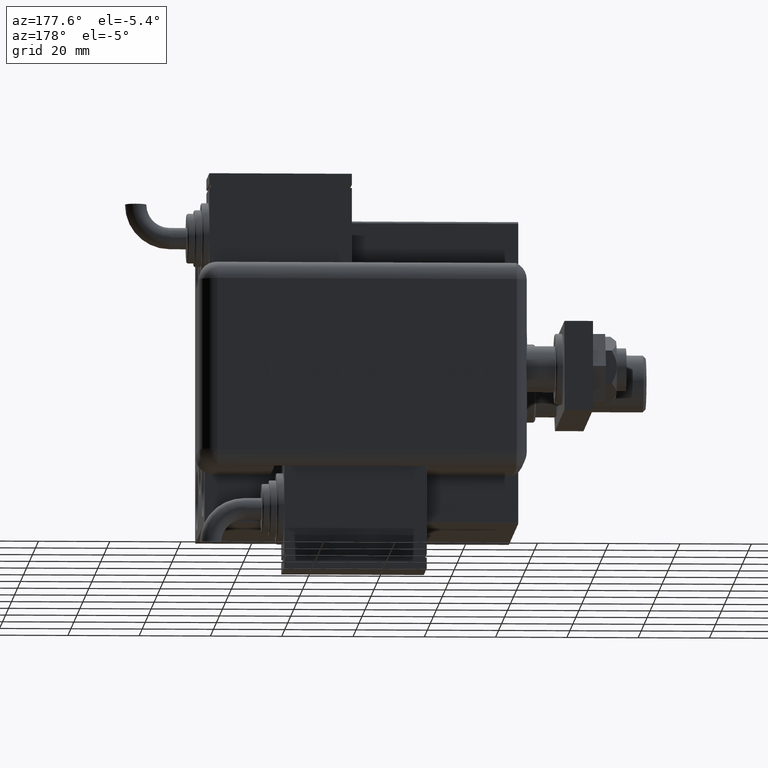
[diagram: clean part render]
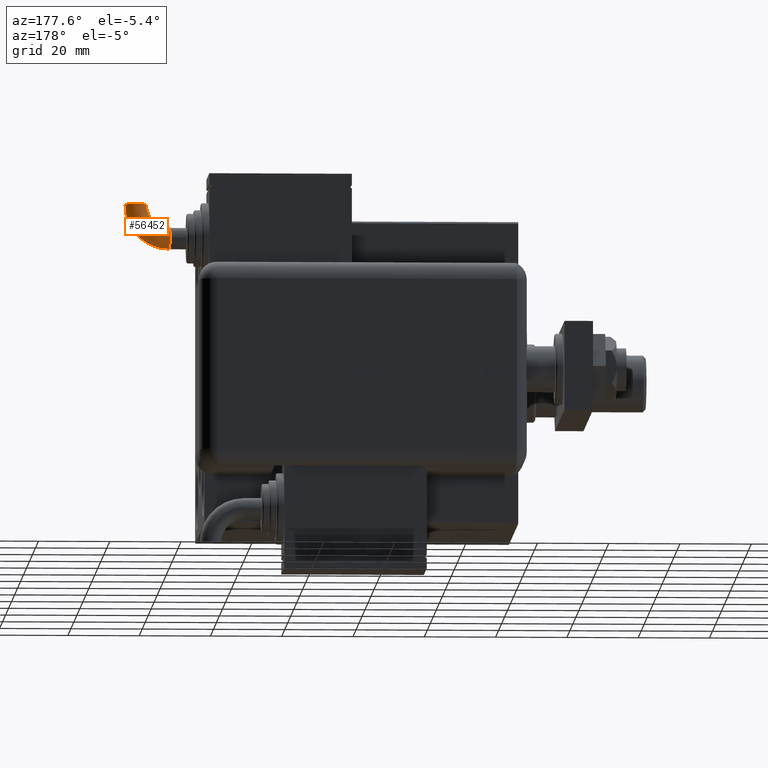
[diagram: same view with one face highlighted and labeled with its STEP entity id]
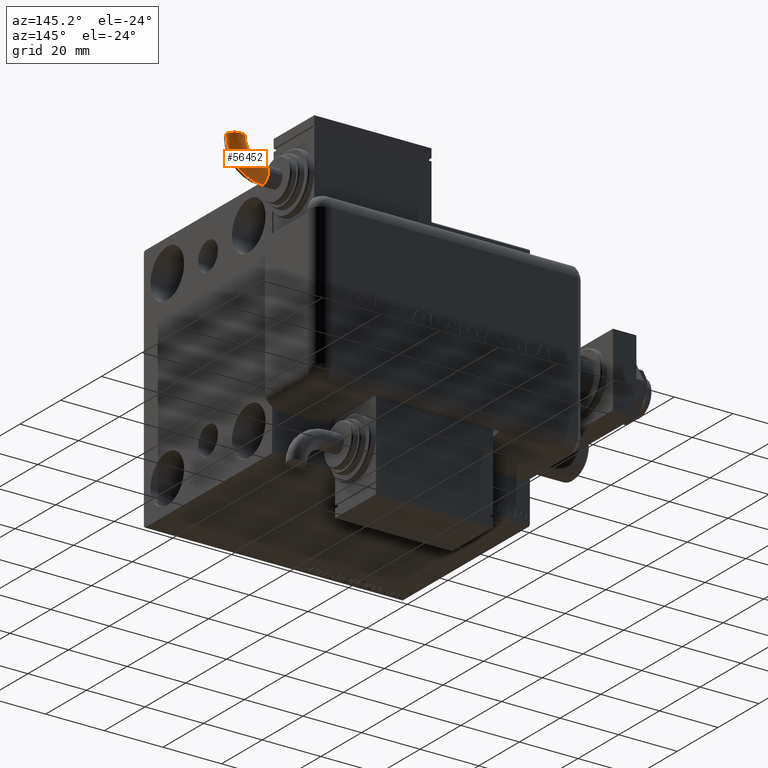
[diagram: same view with one face highlighted and labeled with its STEP entity id]
A machine part, auxiliary view. The second image highlights one B-rep face of the part: STEP entity #56452.
A second angle (auxiliary view) of the same face is appended — the face is thin or edge-on in the first view.
In plain terms, the highlighted toroidal blend (fillet) surface has major radius 9.5072 mm and minor (blend) radius 3 mm.
Its self-contained STEP definition (entity closure, byte-faithful):
#370 = AXIS2_PLACEMENT_3D ( 'NONE', #41209, #40312, #50317 ) ;
#1590 = DIRECTION ( 'NONE',  ( 1.000000000000000000, 1.025520576932673761E-15, 0.000000000000000000 ) ) ;
#3726 = AXIS2_PLACEMENT_3D ( 'NONE', #24999, #6539, #34107 ) ;
#4070 = CARTESIAN_POINT ( 'NONE',  ( -30.75201677704342274, 2.118407575146589373E-14, -2.999999999999997335 ) ) ;
#4493 = EDGE_LOOP ( 'NONE', ( #10766, #22055, #28416, #43967, #8792 ) ) ;
#4503 = EDGE_CURVE ( 'NONE', #41441, #53791, #4696, .T. ) ;
#4696 = CIRCLE ( 'NONE', #3726, 6.507211519273966793 ) ;
#6539 = DIRECTION ( 'NONE',  ( 0.000000000000000000, 0.000000000000000000, 1.000000000000000000 ) ) ;
#8792 = ORIENTED_EDGE ( 'NONE', *, *, #56777, .T. ) ;
#10766 = ORIENTED_EDGE ( 'NONE', *, *, #14748, .F. ) ;
#11286 = DIRECTION ( 'NONE',  ( -1.156482317317872908E-15, 1.000000000000000000, 0.000000000000000000 ) ) ;
#14748 = EDGE_CURVE ( 'NONE', #15075, #18276, #41704, .T. ) ;
#15075 = VERTEX_POINT ( 'NONE', #48217 ) ;
#16930 = TOROIDAL_SURFACE ( 'NONE', #45035, 9.507211519273964129, 2.999999999999996891 ) ;
#18276 = VERTEX_POINT ( 'NONE', #42639 ) ;
#19713 = DIRECTION ( 'NONE',  ( 0.000000000000000000, 0.000000000000000000, 1.000000000000000000 ) ) ;
#22055 = ORIENTED_EDGE ( 'NONE', *, *, #52789, .F. ) ;
#22323 = CARTESIAN_POINT ( 'NONE',  ( -30.75201677704342274, -9.507211519273942812, 0.000000000000000000 ) ) ;
#23572 = CARTESIAN_POINT ( 'NONE',  ( -30.75201677704341918, -2.999999999999976463, -3.673940397442056910E-16 ) ) ;
#24848 = FACE_OUTER_BOUND ( 'NONE', #4493, .T. ) ;
#24999 = CARTESIAN_POINT ( 'NONE',  ( -30.75201677704342274, -9.507211519273942812, -3.673940397442055924E-16 ) ) ;
#26264 = DIRECTION ( 'NONE',  ( -7.402363701065945741E-06, 0.9999999999726024713, 0.000000000000000000 ) ) ;
#26607 = CIRCLE ( 'NONE', #50834, 2.999999999999996891 ) ;
#28416 = ORIENTED_EDGE ( 'NONE', *, *, #46739, .F. ) ;
#28884 = CARTESIAN_POINT ( 'NONE',  ( -37.25922829613910636, -9.507259688020280208, -3.673940397551225891E-16 ) ) ;
#29478 = CARTESIAN_POINT ( 'NONE',  ( -30.75201677704342274, 2.081668171172168513E-14, 0.000000000000000000 ) ) ;
#33220 = CIRCLE ( 'NONE', #46764, 2.999999999999996003 ) ;
#34107 = DIRECTION ( 'NONE',  ( 1.000000000000000000, 0.000000000000000000, 0.000000000000000000 ) ) ;
#40312 = DIRECTION ( 'NONE',  ( 1.000000000000000000, 1.025520576932673761E-15, 0.000000000000000000 ) ) ;
#40809 = CARTESIAN_POINT ( 'NONE',  ( -40.25922829605691078, -9.507281895111381331, 0.000000000000000000 ) ) ;
#41209 = CARTESIAN_POINT ( 'NONE',  ( -30.75201677704342274, 2.081668171172168513E-14, 0.000000000000000000 ) ) ;
#41441 = VERTEX_POINT ( 'NONE', #23572 ) ;
#41704 = CIRCLE ( 'NONE', #42710, 12.50721151927396058 ) ;
#42639 = CARTESIAN_POINT ( 'NONE',  ( -43.25922829597471519, -9.507304102202486007, 0.000000000000000000 ) ) ;
#42710 = AXIS2_PLACEMENT_3D ( 'NONE', #22323, #45372, #54488 ) ;
#42753 = CARTESIAN_POINT ( 'NONE',  ( -30.75201677704342274, -9.507211519273942812, 0.000000000000000000 ) ) ;
#43967 = ORIENTED_EDGE ( 'NONE', *, *, #4503, .T. ) ;
#44775 = DIRECTION ( 'NONE',  ( -0.9999999999726024713, -7.402363701169985951E-06, 0.000000000000000000 ) ) ;
#45035 = AXIS2_PLACEMENT_3D ( 'NONE', #42753, #19713, #52770 ) ;
#45372 = DIRECTION ( 'NONE',  ( 0.000000000000000000, 0.000000000000000000, 1.000000000000000000 ) ) ;
#46739 = EDGE_CURVE ( 'NONE', #41441, #52152, #33220, .T. ) ;
#46764 = AXIS2_PLACEMENT_3D ( 'NONE', #29478, #1590, #11286 ) ;
#48217 = CARTESIAN_POINT ( 'NONE',  ( -30.75201677704342629, 3.000000000000017319, 0.000000000000000000 ) ) ;
#50317 = DIRECTION ( 'NONE',  ( -1.156482317317872908E-15, 1.000000000000000000, 0.000000000000000000 ) ) ;
#50834 = AXIS2_PLACEMENT_3D ( 'NONE', #40809, #26264, #44775 ) ;
#52152 = VERTEX_POINT ( 'NONE', #4070 ) ;
#52770 = DIRECTION ( 'NONE',  ( 1.000000000000000000, 0.000000000000000000, 0.000000000000000000 ) ) ;
#52789 = EDGE_CURVE ( 'NONE', #52152, #15075, #55569, .T. ) ;
#53791 = VERTEX_POINT ( 'NONE', #28884 ) ;
#54488 = DIRECTION ( 'NONE',  ( 1.000000000000000000, 0.000000000000000000, 0.000000000000000000 ) ) ;
#55569 = CIRCLE ( 'NONE', #370, 2.999999999999996003 ) ;
#56452 = ADVANCED_FACE ( 'NONE', ( #24848 ), #16930, .T. ) ;
#56777 = EDGE_CURVE ( 'NONE', #53791, #18276, #26607, .T. ) ;